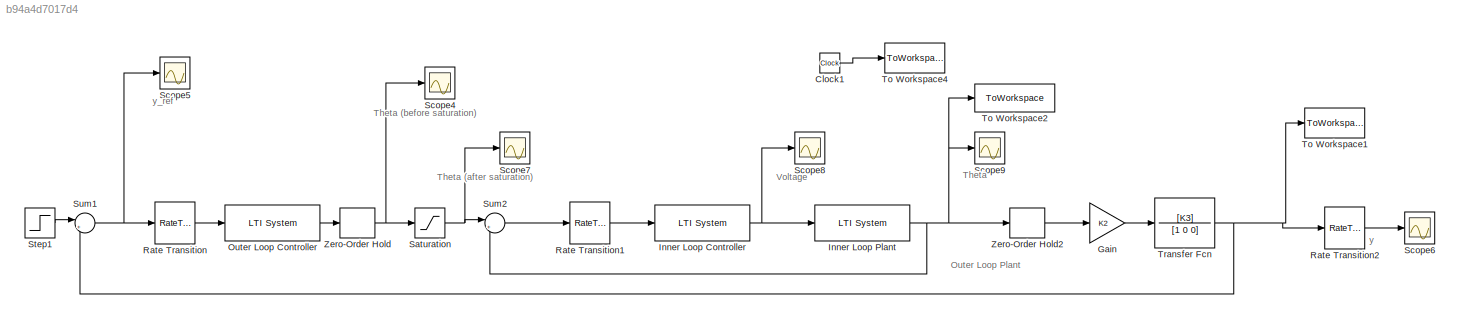
MODEL slx_b94a4d7017d4
KIND model
CONFIG AbsTol = 1e-12
CONFIG EnableMultiTasking = on
CONFIG FixedStep = T
CONFIG MaxStep = 0.01
CONFIG MinStep = auto
CONFIG RelTol = 1e-12
CONFIG SampleTimeConstraint = Unconstrained
CONFIG SolverName = ode45
CONFIG StartTime = 0.0
CONFIG StopTime = 40
BLOCK [Clock] Clock1
BLOCK [Gain] Gain
  Gain = K2
BLOCK [Reference] Inner Loop Controller  REF=cstblocks/LTI System
  SourceBlock = cstblocks/LTI System
  SourceType = LTI Block
BLOCK [Reference] Inner Loop Plant  REF=cstblocks/LTI System
  SourceBlock = cstblocks/LTI System
  SourceType = LTI Block
BLOCK [Reference] Outer Loop Controller  REF=cstblocks/LTI System
  SourceBlock = cstblocks/LTI System
  SourceType = LTI Block
BLOCK [RateTransition] Rate Transition
BLOCK [RateTransition] Rate Transition1
BLOCK [RateTransition] Rate Transition2
BLOCK [Saturate] Saturation
BLOCK [Scope] Scope4
  ActiveDisplayYMaximum = 8.76404
  ActiveDisplayYMinimum = -7.94103
  DataLoggingDecimateData = on
  DataLoggingDecimation = 1
  DataLoggingSaveFormat = Structure With Time
  DataLoggingVariableName = ScopeData3
  Floating = off
  GraphicalSettings = {"Style":{"BackgroundColor":[0.12941176470588237,0.12941176470588237,0.12941176470588237],"AxesColor":[0.07058823529411765,0.07058823529411765,0.07058823529411765],"LabelsColor":[0.8509803921568627,0.8509803921568627,0.8509803921568627],"PreserveColors":false,"Visible":[true],"LineStyle":["-"],"LineWidth":[0.5],"BarWidth":[0.9],"LineColor":[[1,1,0]],"LineFaceAlpha":[1],"LineEdgeAlpha":[1],"Marker"...<+1905ch>
  LayoutDimensionsString = [1 1]
  MultipleDisplayCache = [{"MaxYLimMag":10,"MaxYLimReal":8.76404,"MinYLimMag":0,"MinYLimReal":-7.94103,"PlotAsMagnitudePhase":false,"ShowGrid":true,"ShowLegend":false,"Title":"%<SignalLabel>","YLabel":""}]  <repeated x5 — deduplicated; at blocks: Scope4, Scope5, Scope7, Scope8, Scope9>
  NumInputPorts = 1
  ScopeFrameLocation = window
  WasSavedAsWebScope = on
  WindowPosition = [680.000000,501.000000,560.000000,420.000000,]
BLOCK [Scope] Scope5
  ActiveDisplayYMaximum = 8.76404
  ActiveDisplayYMinimum = -7.94103
  DataLoggingDecimateData = on
  DataLoggingDecimation = 1
  DataLoggingSaveFormat = Structure With Time
  DataLoggingVariableName = ScopeData4
  Floating = off
  GraphicalSettings = {"Style":{"BackgroundColor":[0.12941176470588237,0.12941176470588237,0.12941176470588237],"AxesColor":[0.07058823529411765,0.07058823529411765,0.07058823529411765],"LabelsColor":[0.8509803921568627,0.8509803921568627,0.8509803921568627],"PreserveColors":false,"Visible":[true],"LineStyle":["-"],"LineWidth":[0.5],"BarWidth":[0.9],"LineColor":[[1,1,0]],"LineFaceAlpha":[1],"LineEdgeAlpha":[1],"Marker"...<+1883ch>
  LayoutDimensionsString = [1 1]
  NumInputPorts = 1
  ScopeFrameLocation = window
  WasSavedAsWebScope = on
  WindowPosition = [680.000000,427.000000,560.000000,420.000000,]
BLOCK [Scope] Scope6
  ActiveDisplayYMaximum = 4.7238671441189712
  ActiveDisplayYMinimum = -7.9785009359459504
  DataLoggingDecimateData = on
  DataLoggingDecimation = 1
  DataLoggingSaveFormat = Structure With Time
  DataLoggingVariableName = ScopeData5
  Floating = off
  GraphicalSettings = {"AxesScalingProperties":{"AlignXAxis":"Center","AlignYAxis":"Center","AutoScaleXAxisLimits":false,"AxesScaling":"Manual","AxesScalingNumUpdates":10,"ExpandOnly":true,"ScaleAxesLimitsAtStop":false,"XAxisDataRange":100,"YAxisDataRange":80},"DisplayProperties":{"ColorOrder":["auto","auto","auto","auto","auto","auto","auto","auto","auto","auto","auto","auto","auto","auto","auto","auto","auto","auto",...<+1989ch>
  LayoutDimensionsString = [1 1]
  MultipleDisplayCache = [{"MaxYLimMag":4.3136550257645414,"MaxYLimReal":4.7238671441189712,"MinYLimMag":0,"MinYLimReal":-7.9785009359459504,"PlotAsMagnitudePhase":false,"ShowGrid":true,"ShowLegend":false,"Title":"%<SignalLabel>","YLabel":""}]
  NumInputPorts = 1
  ScopeFrameLocation = window
  WasSavedAsWebScope = on
  WindowPosition = [11.000000,-1050.000000,1920.000000,1136.000000,]
BLOCK [Scope] Scope7
  ActiveDisplayYMaximum = 8.76404
  ActiveDisplayYMinimum = -7.94103
  DataLoggingDecimateData = on
  DataLoggingDecimation = 1
  DataLoggingSaveFormat = Structure With Time
  DataLoggingVariableName = ScopeData6
  Floating = off
  GraphicalSettings = {"Style":{"BackgroundColor":[0.12941176470588237,0.12941176470588237,0.12941176470588237],"AxesColor":[0.07058823529411765,0.07058823529411765,0.07058823529411765],"LabelsColor":[0.8509803921568627,0.8509803921568627,0.8509803921568627],"PreserveColors":false,"Visible":[true],"LineStyle":["-"],"LineWidth":[0.5],"BarWidth":[0.9],"LineColor":[[1,1,0]],"LineFaceAlpha":[1],"LineEdgeAlpha":[1],"Marker"...<+1895ch>
  LayoutDimensionsString = [1 1]
  NumInputPorts = 1
  ScopeFrameLocation = window
  WasSavedAsWebScope = on
  WindowPosition = [680.000000,427.000000,560.000000,420.000000,]
BLOCK [Scope] Scope8
  ActiveDisplayYMaximum = 8.76404
  ActiveDisplayYMinimum = -7.94103
  DataLoggingDecimateData = on
  DataLoggingDecimation = 1
  DataLoggingSaveFormat = Structure With Time
  DataLoggingVariableName = ScopeData7
  Floating = off
  GraphicalSettings = {"Style":{"BackgroundColor":[0.12941176470588237,0.12941176470588237,0.12941176470588237],"AxesColor":[0.07058823529411765,0.07058823529411765,0.07058823529411765],"LabelsColor":[0.8509803921568627,0.8509803921568627,0.8509803921568627],"PreserveColors":false,"Visible":[true],"LineStyle":["-"],"LineWidth":[0.5],"BarWidth":[0.9],"LineColor":[[1,1,0]],"LineFaceAlpha":[1],"LineEdgeAlpha":[1],"Marker"...<+1917ch>
  LayoutDimensionsString = [1 1]
  NumInputPorts = 1
  ScopeFrameLocation = window
  WasSavedAsWebScope = on
  WindowPosition = [680.000000,427.000000,560.000000,420.000000,]
BLOCK [Scope] Scope9
  ActiveDisplayYMaximum = 8.76404
  ActiveDisplayYMinimum = -7.94103
  DataLoggingDecimateData = on
  DataLoggingDecimation = 1
  DataLoggingSaveFormat = Structure With Time
  DataLoggingVariableName = ScopeData8
  Floating = off
  GraphicalSettings = {"Style":{"BackgroundColor":[0.12941176470588237,0.12941176470588237,0.12941176470588237],"AxesColor":[0.07058823529411765,0.07058823529411765,0.07058823529411765],"LabelsColor":[0.8509803921568627,0.8509803921568627,0.8509803921568627],"PreserveColors":false,"Visible":[true],"LineStyle":["-"],"LineWidth":[0.5],"BarWidth":[0.9],"LineColor":[[1,1,0]],"LineFaceAlpha":[1],"LineEdgeAlpha":[1],"Marker"...<+1907ch>
  LayoutDimensionsString = [1 1]
  NumInputPorts = 1
  ScopeFrameLocation = window
  WasSavedAsWebScope = on
  WindowPosition = [680.000000,501.000000,560.000000,420.000000,]
BLOCK [Step] Step1
  SampleTime = 0.5
  Time = 0
BLOCK [Sum] Sum1
  Inputs = |+-
BLOCK [Sum] Sum2
  Inputs = |+-
BLOCK [ToWorkspace] To Workspace1
  MaxDataPoints = inf
  SampleTime = -1
  VariableName = out_cntrl_out
BLOCK [ToWorkspace] To Workspace2
  MaxDataPoints = inf
  SampleTime = -1
  VariableName = in_cntrl_out
BLOCK [ToWorkspace] To Workspace4
  MaxDataPoints = inf
  SampleTime = -1
  VariableName = t_sim1
BLOCK [TransferFcn] Transfer Fcn
  Denominator = [1 0 0]
  Numerator = [K3]
BLOCK [ZeroOrderHold] Zero-Order Hold
  SampleTime = -1
BLOCK [ZeroOrderHold] Zero-Order Hold2
  SampleTime = -1
ANNOTATION (root): Outer Loop Plant
ANNOTATION (root): Theta
ANNOTATION (root): Theta (after saturation)
ANNOTATION (root): Theta (before saturation)
ANNOTATION (root): Voltage
ANNOTATION (root): y
ANNOTATION (root): y_ref
LINE Clock1:1 -> To Workspace4:1
LINE Gain:1 -> Transfer Fcn:1
NET Inner Loop Controller:1 -> Inner Loop Plant:1, Scope8:1
NET Inner Loop Plant:1 -> Scope9:1, Sum2:2, To Workspace2:1, Zero-Order Hold2:1
LINE Outer Loop Controller:1 -> Zero-Order Hold:1
LINE Rate Transition1:1 -> Inner Loop Controller:1
LINE Rate Transition2:1 -> Scope6:1
LINE Rate Transition:1 -> Outer Loop Controller:1
NET Saturation:1 -> Scope7:1, Sum2:1
LINE Step1:1 -> Sum1:1
NET Sum1:1 -> Rate Transition:1, Scope5:1
LINE Sum2:1 -> Rate Transition1:1
NET Transfer Fcn:1 -> Rate Transition2:1, Sum1:2, To Workspace1:1
LINE Zero-Order Hold2:1 -> Gain:1
NET Zero-Order Hold:1 -> Saturation:1, Scope4:1
note: NET lines group one-source signal fan-out (src -> all destinations, sorted); 1:1 wires keep LINE
